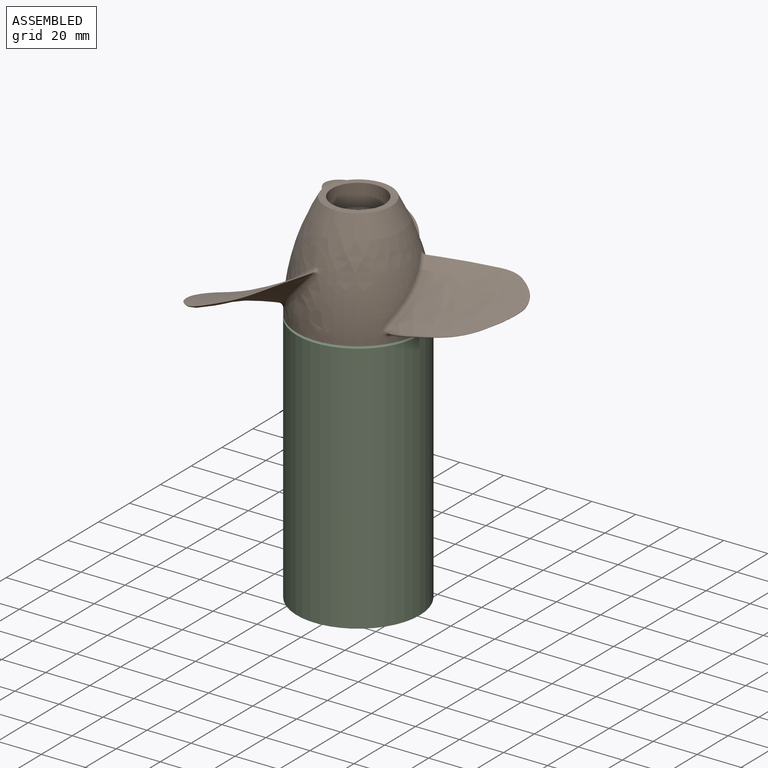
[diagram: assembled view]
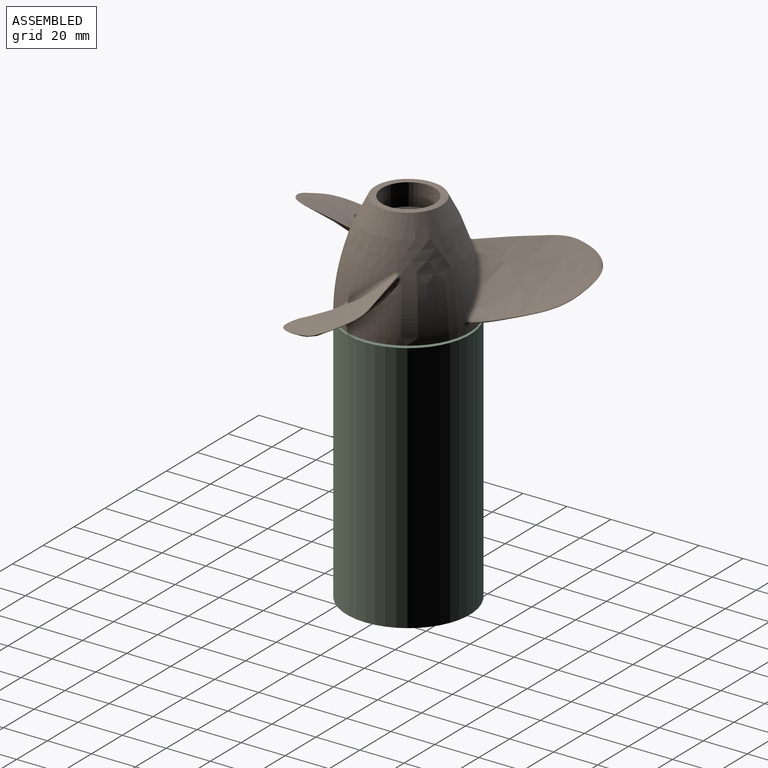
[diagram: assembled view, second angle]
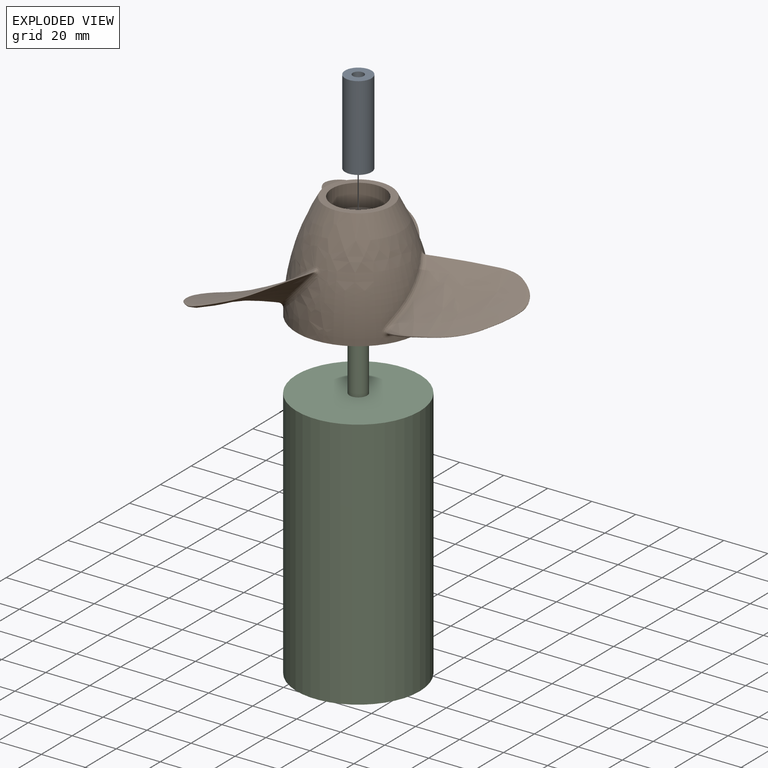
[diagram: exploded view]
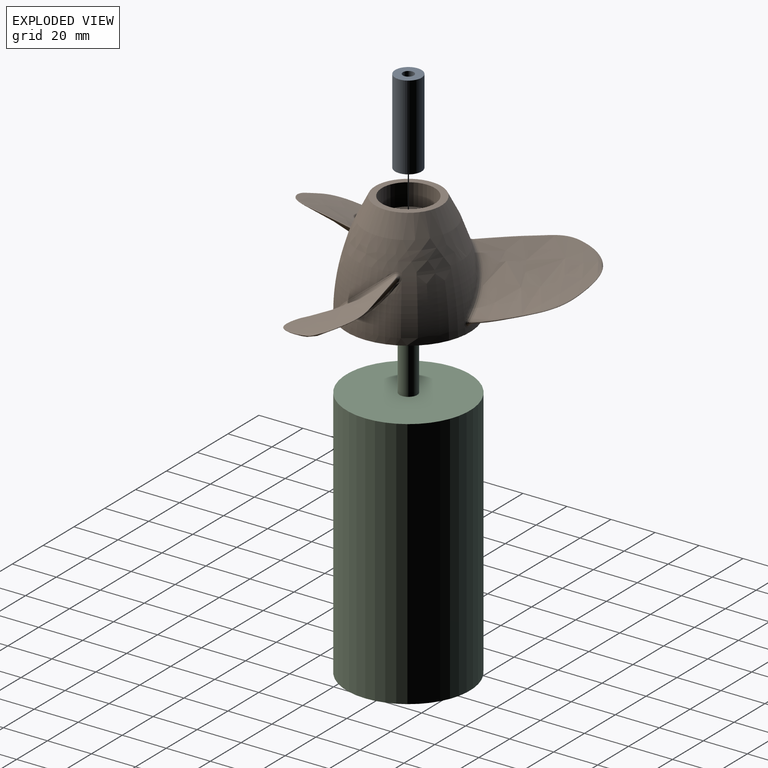
[diagram: exploded view, second angle]
ASSEMBLY  parts=3 mates=2
PART A: 6 faces, bbox 12x12x38.5 mm
  f0: cylinder r=4mm len=25mm, axis (0,0,1), area 628.3mm2, adj f1,f5
  f1: plane 8x8mm, normal (0,0,1), area 30.6mm2, adj f0,f2
  f2: cylinder r=2.5mm len=13.52mm, axis (0,0,1), area 212.3mm2, adj f1,f3
  f3: plane 12x12mm, normal (0,0,-1), area 93.5mm2, adj f2,f4
  f4: cylinder r=6mm len=38.52mm, axis (0,0,1), area 1452mm2, adj f3,f5
  f5: plane 12x12mm, normal (0,0,1), area 62.8mm2, adj f0,f4
PART B: 44 faces, bbox 119.6x132.8x48.5 mm
  f0: plane 30x30mm, normal (0,0,-1), area 254.5mm2, adj f1,f39
  f1: revolved ~55.47x55.47mm, area 14361.6mm2, adj f0,f2,f27,f28,f29,f30,f31,f32
  f2: plane 56x56mm, normal (0,0,1), area 653.5mm2, adj f1,f43
  f3: bspline ~15.58x10.85mm, area 7.4mm2, adj f4,f6,f10
  f4: bspline ~24.15x17.74mm, area 108.4mm2, adj f3,f5,f9
  f5: bspline ~14.65x5.45mm, area 4mm2, adj f4,f6,f8
  f6: bspline ~24.17x17.81mm, area 104.2mm2, adj f3,f5,f7
  f7: bspline ~55.32x42.25mm, area 1380.9mm2, adj f6,f8,f10,f33
  f8: bspline ~45.14x16.89mm, area 27.6mm2, adj f5,f7,f9,f32,f34
  f9: bspline ~54.21x42.56mm, area 1404.4mm2, adj f4,f8,f10,f32
  f10: bspline ~37.2x17.25mm, area 75.1mm2, adj f3,f7,f9,f31,f33
  f11: bspline ~27.13x9.77mm, area 108.4mm2, adj f12,f13,f18
  f12: bspline ~11.53x9.32mm, area 4mm2, adj f11,f14,f17
  f13: bspline ~17.19x8.7mm, area 7.4mm2, adj f11,f14,f16
  f14: bspline ~27.18x9.75mm, area 104.3mm2, adj f12,f13,f15
  f15: bspline ~43.62x36.49mm, area 1380.9mm2, adj f14,f16,f17,f29
  f16: bspline ~43x12.18mm, area 75.1mm2, adj f13,f15,f18,f27,f29
  f17: bspline ~47.37x11.86mm, area 27.6mm2, adj f12,f15,f18,f28,f30
  f18: bspline ~42.62x36.24mm, area 1404.4mm2, adj f11,f16,f17,f28
  f19: bspline ~51.2x46.9mm, area 1404.4mm2, adj f20,f22,f26,f38
  f20: bspline ~37.1x31.33mm, area 27.6mm2, adj f19,f21,f25,f37,f38
  f21: bspline ~50.98x47.9mm, area 1380.9mm2, adj f20,f22,f24,f35
  f22: bspline ~35.45x25.3mm, area 75.1mm2, adj f19,f21,f23,f35,f36
  f23: bspline ~18.92x5.03mm, area 7.4mm2, adj f22,f24,f26
  f24: bspline ~23.44x17.71mm, area 104.3mm2, adj f21,f23,f25
  f25: bspline ~13.84x5.69mm, area 4.3mm2, adj f20,f24,f26
  f26: bspline ~23.35x17.72mm, area 108.4mm2, adj f19,f23,f25
  f27: bspline ~4.3x3.03mm, area 10.1mm2, adj f1,f16,f28,f29
  f28: bspline ~27.03x24.19mm, area 0mm2, adj f1,f17,f18,f27,f30
  f29: bspline ~26.87x22.47mm, area 97.1mm2, adj f1,f15,f16,f27,f30
  f30: bspline ~3.83x3.36mm, area 9.8mm2, adj f1,f17,f28,f29
  f31: bspline ~4.3x3.42mm, area 10.1mm2, adj f1,f10,f32,f33
  f32: bspline ~25.14x24.19mm, area 0mm2, adj f1,f8,f9,f31,f34
  f33: bspline ~23.85x22.47mm, area 97.1mm2, adj f1,f7,f10,f31,f34
  f34: bspline ~3.83x3.44mm, area 9.8mm2, adj f1,f8,f32,f33
  f35: bspline ~23.77x22.47mm, area 97.1mm2, adj f1,f21,f22,f36,f37
  f36: bspline ~4.3x3.05mm, area 10.1mm2, adj f1,f22,f35,f38
  f37: bspline ~3.83x3.07mm, area 9.8mm2, adj f1,f20,f35,f38
  f38: bspline ~24.19x22.24mm, area 0mm2, adj f1,f19,f20,f36,f37
  f39: cylinder r=12mm len=24mm, axis (0,0,-1), area 754mm2, adj f0,f40
  f40: plane 24x24mm, normal (0,0,-1), area 335.5mm2, adj f39,f41
  f41: cylinder r=6.1mm len=18.52mm, axis (0,0,-1), area 709.7mm2, adj f40,f42
  f42: plane 36x36mm, normal (0,0,1), area 901mm2, adj f41,f43
  f43: cone r=18mm half-angle=16.7deg, axis (0,0,1), area 2755.1mm2, adj f2,f42
PART C: 5 faces, bbox 140x56x56 mm
  f0: plane 56x56mm, normal (1,0,0), area 2463mm2, adj f1
  f1: cylinder r=28mm len=115mm, axis (1,0,0), area 20231.9mm2, adj f0,f2
  f2: plane 56x56mm, normal (-1,0,0), area 2412.7mm2, adj f1,f3
  f3: cylinder r=4mm len=25mm, axis (1,0,0), area 628.3mm2, adj f2,f4
  f4: plane 8x8mm, normal (-1,0,0), area 50.3mm2, adj f3
PLACE A rot(axis=(0.2,-0.98,0),180deg) t=(0,0,-1.81)mm
PLACE B rot(axis=(1,0,0),180deg) t=(0,0,-6)mm
PLACE C rot(axis=(0.71,0,-0.71),180deg) t=(0,0,-25)mm
MATE revolute A.f0 <-> B.f39  axis (0,0,1) through (0,0,14.52)mm
MATE fastened B.f39 <-> C.f1  axis (0,0,-1) through (0,0,-24)mm
